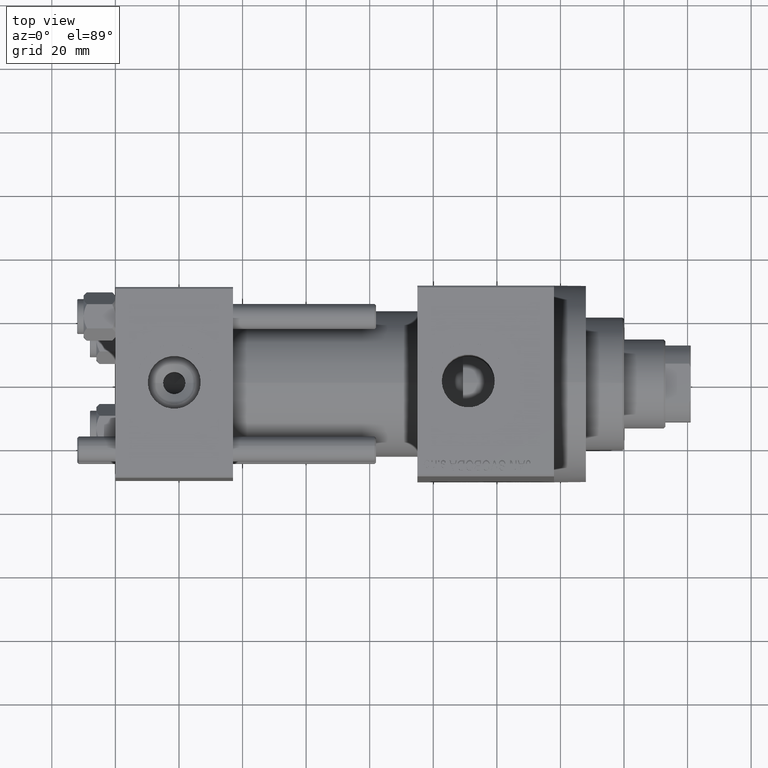
[diagram: clean part render]
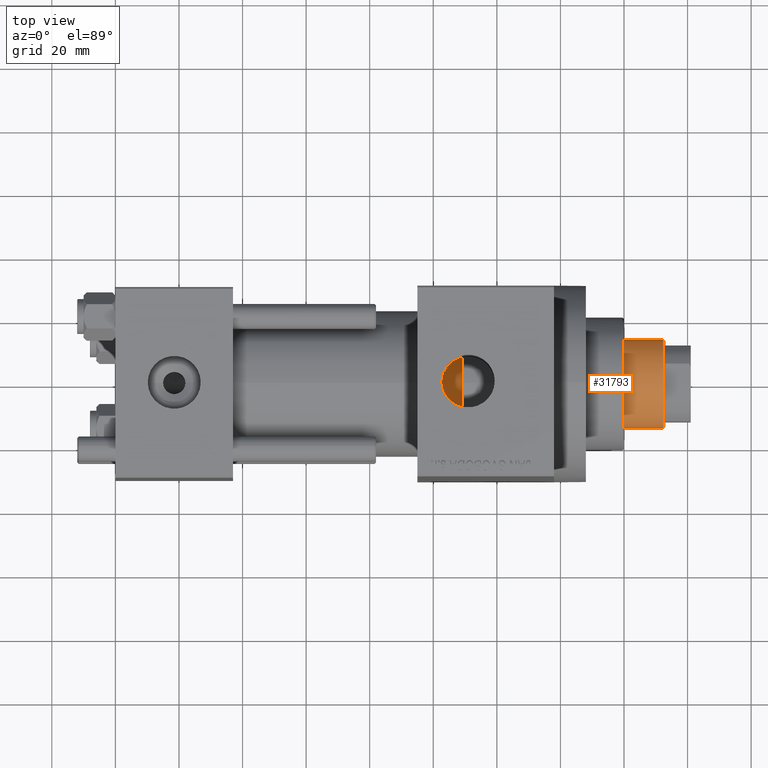
[diagram: same view with one face highlighted and labeled with its STEP entity id]
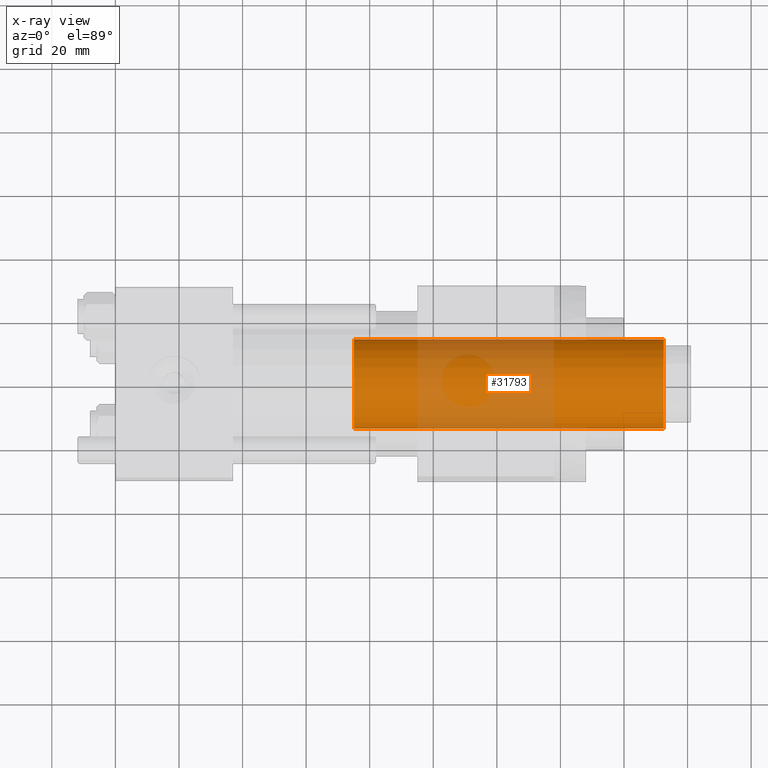
[diagram: x-ray of the same camera — body ghosted, the highlighted face saturated]
A machine part, top view. The second image highlights one B-rep face of the part: STEP entity #31793.
The next image is the same camera in x-ray: the body ghosted, the highlighted face saturated — about 37% of this face is hidden behind the body in this view.
In plain terms, the highlighted cylindrical surface (partial cylindrical patch) has radius 14 mm, axis along (-1, 0, 0).
Its self-contained STEP definition (entity closure, byte-faithful):
#779 = LINE ( 'NONE', #15679, #16757 ) ;
#2199 = DIRECTION ( 'NONE',  ( -0.000000000000000000, -0.000000000000000000, -1.000000000000000000 ) ) ;
#2386 = DIRECTION ( 'NONE',  ( 0.000000000000000000, 0.000000000000000000, 1.000000000000000000 ) ) ;
#5805 = DIRECTION ( 'NONE',  ( 1.000000000000000000, 0.000000000000000000, 0.000000000000000000 ) ) ;
#6342 = LINE ( 'NONE', #21232, #7507 ) ;
#6925 = CARTESIAN_POINT ( 'NONE',  ( 14.00000000000000178, 1.714505518806294835E-15, 135.5000000000000284 ) ) ;
#7507 = VECTOR ( 'NONE', #2199, 1000.000000000000000 ) ;
#7515 = CARTESIAN_POINT ( 'NONE',  ( -14.00000000000000178, 0.000000000000000000, 38.00000000000000000 ) ) ;
#9925 = AXIS2_PLACEMENT_3D ( 'NONE', #10779, #29093, #43708 ) ;
#10779 = CARTESIAN_POINT ( 'NONE',  ( 0.000000000000000000, 0.000000000000000000, 136.0000000000000000 ) ) ;
#14204 = CARTESIAN_POINT ( 'NONE',  ( 14.00000000000000178, 1.714505518806294835E-15, 38.00000000000000000 ) ) ;
#14307 = ORIENTED_EDGE ( 'NONE', *, *, #33595, .T. ) ;
#14559 = AXIS2_PLACEMENT_3D ( 'NONE', #39197, #34821, #16282 ) ;
#15679 = CARTESIAN_POINT ( 'NONE',  ( 14.00000000000000178, 1.714505518806294835E-15, 136.0000000000000000 ) ) ;
#16203 = VERTEX_POINT ( 'NONE', #41110 ) ;
#16282 = DIRECTION ( 'NONE',  ( 1.000000000000000000, 0.000000000000000000, 0.000000000000000000 ) ) ;
#16757 = VECTOR ( 'NONE', #44213, 1000.000000000000000 ) ;
#17867 = FACE_OUTER_BOUND ( 'NONE', #18132, .T. ) ;
#18132 = EDGE_LOOP ( 'NONE', ( #27504, #35352, #14307, #46988 ) ) ;
#20934 = CARTESIAN_POINT ( 'NONE',  ( 0.000000000000000000, 0.000000000000000000, 38.00000000000000000 ) ) ;
#21045 = CYLINDRICAL_SURFACE ( 'NONE', #9925, 14.00000000000000178 ) ;
#21232 = CARTESIAN_POINT ( 'NONE',  ( -14.00000000000000178, 0.000000000000000000, 136.0000000000000000 ) ) ;
#22899 = VERTEX_POINT ( 'NONE', #14204 ) ;
#26605 = EDGE_CURVE ( 'NONE', #30790, #22899, #779, .T. ) ;
#27076 = VERTEX_POINT ( 'NONE', #7515 ) ;
#27504 = ORIENTED_EDGE ( 'NONE', *, *, #26605, .F. ) ;
#29093 = DIRECTION ( 'NONE',  ( -0.000000000000000000, -0.000000000000000000, -1.000000000000000000 ) ) ;
#30319 = EDGE_CURVE ( 'NONE', #30790, #16203, #48043, .T. ) ;
#30790 = VERTEX_POINT ( 'NONE', #6925 ) ;
#31793 = ADVANCED_FACE ( 'NONE', ( #17867 ), #21045, .T. ) ;
#33595 = EDGE_CURVE ( 'NONE', #16203, #27076, #6342, .T. ) ;
#34157 = AXIS2_PLACEMENT_3D ( 'NONE', #20934, #2386, #5805 ) ;
#34821 = DIRECTION ( 'NONE',  ( 0.000000000000000000, 0.000000000000000000, -1.000000000000000000 ) ) ;
#35352 = ORIENTED_EDGE ( 'NONE', *, *, #30319, .T. ) ;
#37801 = EDGE_CURVE ( 'NONE', #27076, #22899, #45050, .T. ) ;
#39197 = CARTESIAN_POINT ( 'NONE',  ( 0.000000000000000000, 0.000000000000000000, 135.5000000000000284 ) ) ;
#41110 = CARTESIAN_POINT ( 'NONE',  ( -14.00000000000000178, 0.000000000000000000, 135.5000000000000284 ) ) ;
#43708 = DIRECTION ( 'NONE',  ( -1.000000000000000000, 0.000000000000000000, 0.000000000000000000 ) ) ;
#44213 = DIRECTION ( 'NONE',  ( -0.000000000000000000, -0.000000000000000000, -1.000000000000000000 ) ) ;
#45050 = CIRCLE ( 'NONE', #34157, 14.00000000000000178 ) ;
#46988 = ORIENTED_EDGE ( 'NONE', *, *, #37801, .T. ) ;
#48043 = CIRCLE ( 'NONE', #14559, 14.00000000000000178 ) ;